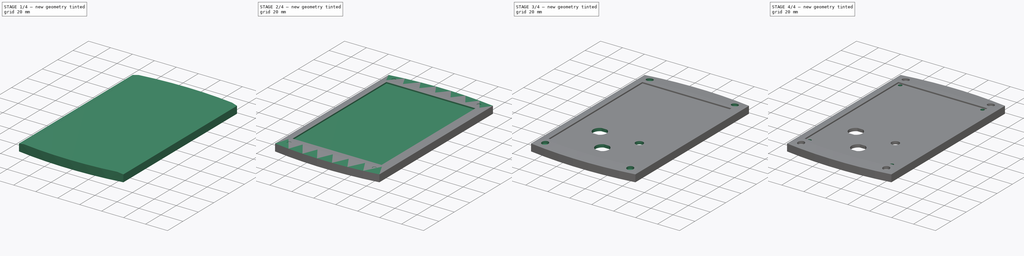
[diagram: build sequence overview — one tinted view per stage of 4, left to right]
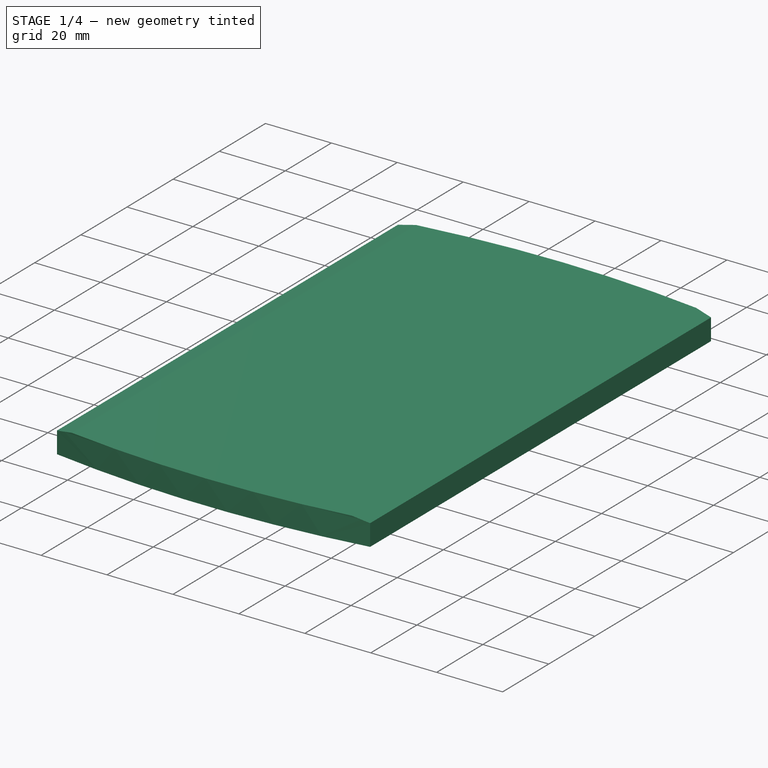
[diagram: stage 1 of 4 — iso view after this stage's code; geometry added in this stage tinted green]
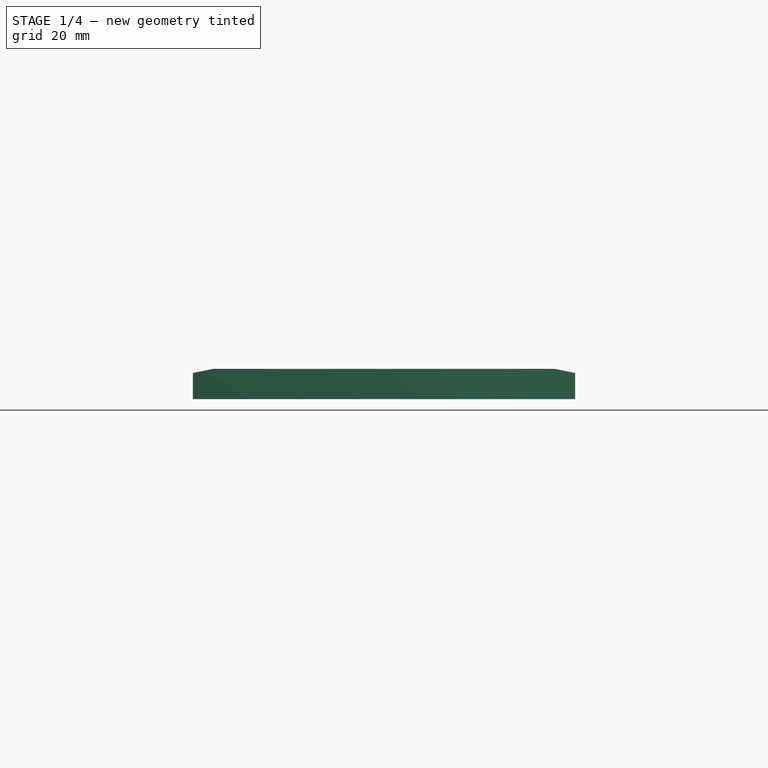
[diagram: stage 1 of 4 — front view after this stage's code; geometry added in this stage tinted green]
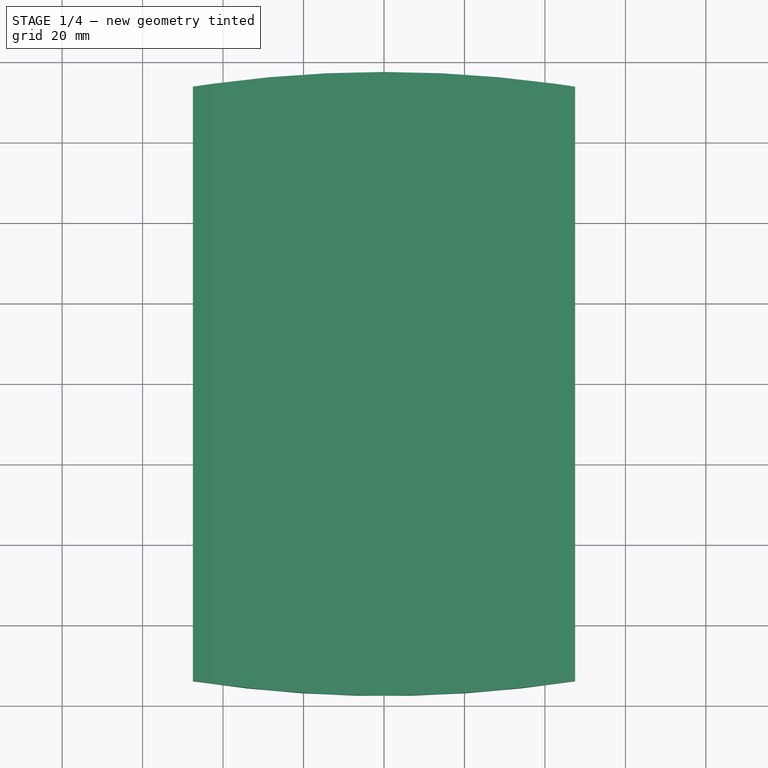
[diagram: stage 1 of 4 — top view after this stage's code; geometry added in this stage tinted green]
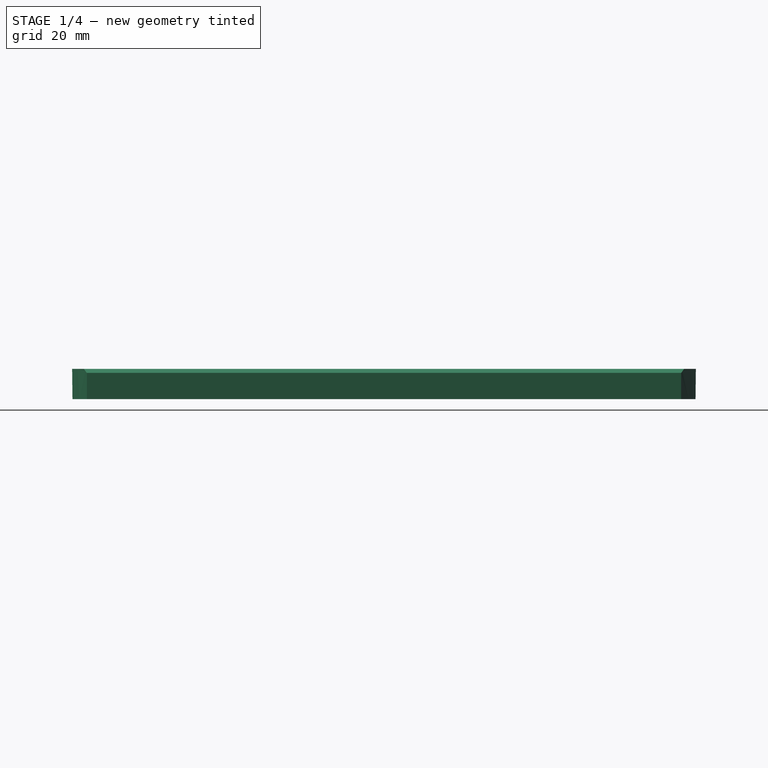
[diagram: stage 1 of 4 — right view after this stage's code; geometry added in this stage tinted green]
FCSTD DOCUMENT  (FreeCAD 1.0R39285 (Git))
Label: Lid_CSACTT004
License: All rights reserved
LicenseURL: https://en.wikipedia.org/wiki/All_rights_reserved
objects: Sketcher::SketchObject×8, PartDesign::Pocket×4, PartDesign::Hole×3, PartDesign::Chamfer×2, PartDesign::Pad×1, PartDesign::Body×1
note: 47 computed .brp shape members not serialized (recipe doc carries the construction recipe); baked Part::Feature solids carry a one-line shape summary decoded from their .brp

FEATURE [Sketcher::SketchObject] Sketch
  ArcFitTolerance = 1e-06
  AttachmentSupport = -> [XY_Plane]
  FullyConstrained = true
  MakeInternals = false
  MapMode = 5
  sketch-geometry (10):
    g0: LineSegment [constr] StartX=-47.5 StartY=-73.85 StartZ=0 EndX=47.5 EndY=-73.85 EndZ=0
    g1: LineSegment StartX=47.5 StartY=-73.85 StartZ=0 EndX=47.5 EndY=73.85 EndZ=0
    g2: LineSegment [constr] StartX=47.5 StartY=73.85 StartZ=0 EndX=-47.5 EndY=73.85 EndZ=0
    g3: LineSegment StartX=-47.5 StartY=73.85 StartZ=0 EndX=-47.5 EndY=-73.85 EndZ=0
    g4: LineSegment [constr] StartX=-47.5 StartY=73.85 StartZ=0 EndX=47.5 EndY=-73.85 EndZ=0
    g5: LineSegment [constr] StartX=-47.5 StartY=-73.85 StartZ=0 EndX=47.5 EndY=73.85 EndZ=0
    g6: ArcOfCircle CenterX=1.47e-14 CenterY=-233.4 CenterZ=0 NormalX=0 NormalY=0 NormalZ=1 AngleXU=0 Radius=310.9 StartAngle=1.41741 EndAngle=1.72418
    g7: ArcOfCircle CenterX=-1.735e-13 CenterY=233.4 CenterZ=0 NormalX=0 NormalY=0 NormalZ=1 AngleXU=0 Radius=310.9 StartAngle=4.55901 EndAngle=4.86577
    g8: GeomPoint X=0 Y=77.5 Z=0
    g9: GeomPoint X=0 Y=-77.5 Z=0
  constraints (26):
    c: Coincident(g0,g1)
    c: Coincident(g1,g2)
    c: Coincident(g2,g3)
    c: Coincident(g3,g0)
    c: Horizontal(g0)
    c: Horizontal(g2)
    c: Vertical(g1)
    c: Vertical(g3)
    c: Coincident(g4,g2)
    c: Coincident(g4,g0)
    c: Coincident(g5,g0)
    c: Coincident(g5,g1)
    c: PointOnObject(g-1,g4)
    c: PointOnObject(g-1,g5)
    c: Coincident(g6,g2)
    c: Coincident(g6,g1)
    c: Coincident(g7,g0)
    c: Coincident(g7,g0)
    c: Equal(g7,g6)
    c: PointOnObject(g8,g6)
    c: PointOnObject(g9,g7)
    c: PointOnObject(g9,g-2)
    c: PointOnObject(g8,g-2)
    c: DistanceY(g9,g8) = 155
    c: DistanceY(g1,g1) = 147.7
    c: Distance(g3,g1) = 95
FEATURE [PartDesign::Pad] Pad
  Direction = (0,0,1)
  Length = 7.5
  Length2 = 10
  Profile = -> Sketch
  ReferenceAxis = -> Sketch [N_Axis]
  Refine = true
  Suppressed = false
  Type = 0
FEATURE [PartDesign::Chamfer] Chamfer
  Angle = 45
  Base = -> Pad [Edge4,Edge10]
  BaseFeature = -> Pad
  ChamferType = 1
  FlipDirection = false
  Refine = true
  Size = 1
  Size2 = 5
  SupportTransform = false
  Suppressed = false
  UseAllEdges = false
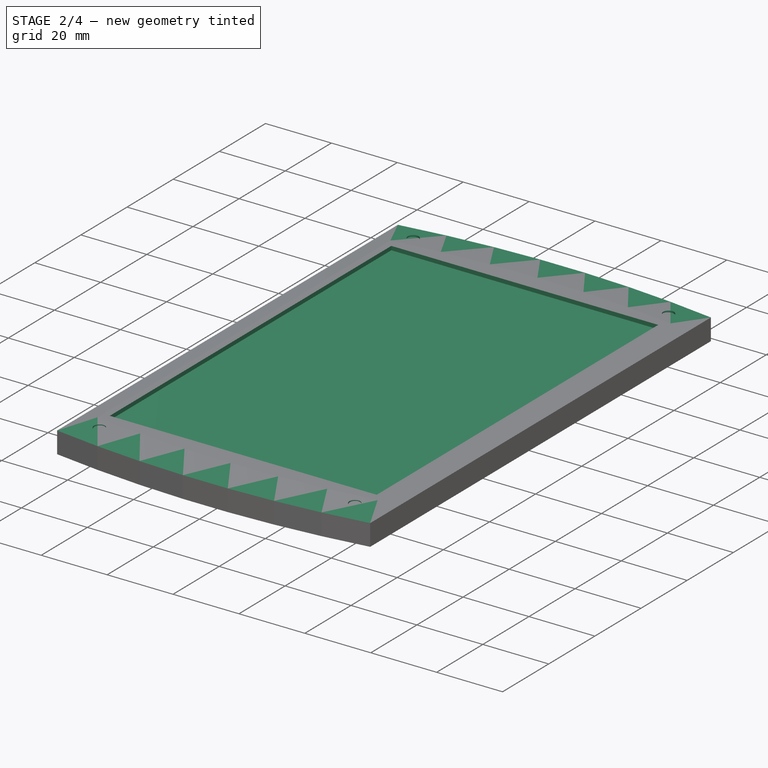
[diagram: stage 2 of 4 — iso view after this stage's code; geometry added in this stage tinted green]
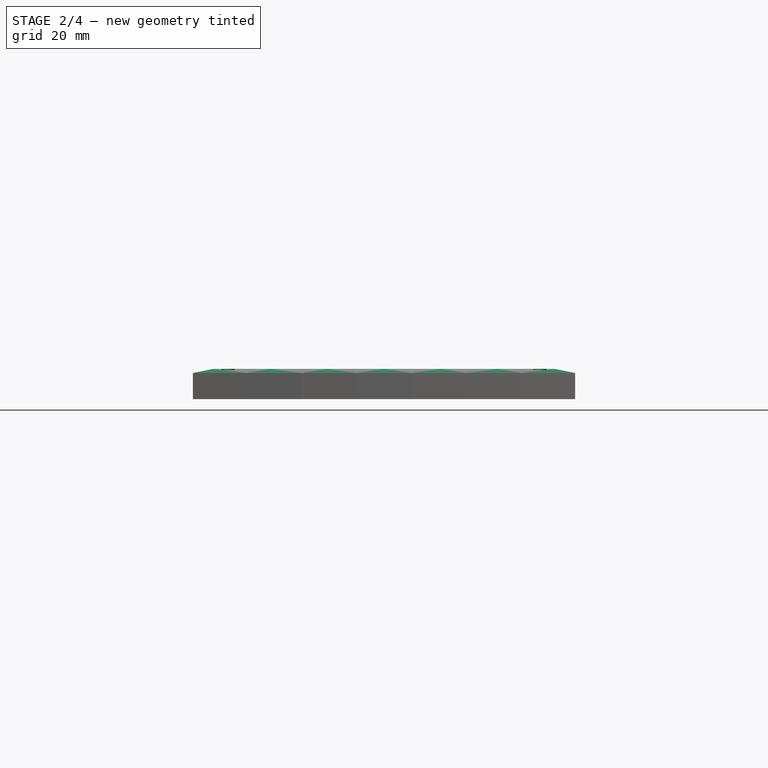
[diagram: stage 2 of 4 — front view after this stage's code; geometry added in this stage tinted green]
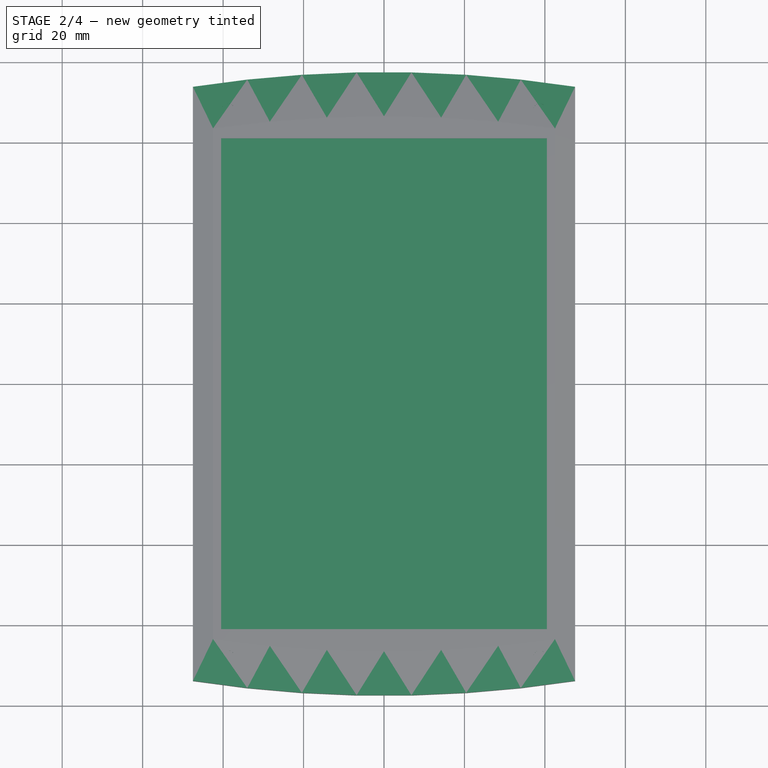
[diagram: stage 2 of 4 — top view after this stage's code; geometry added in this stage tinted green]
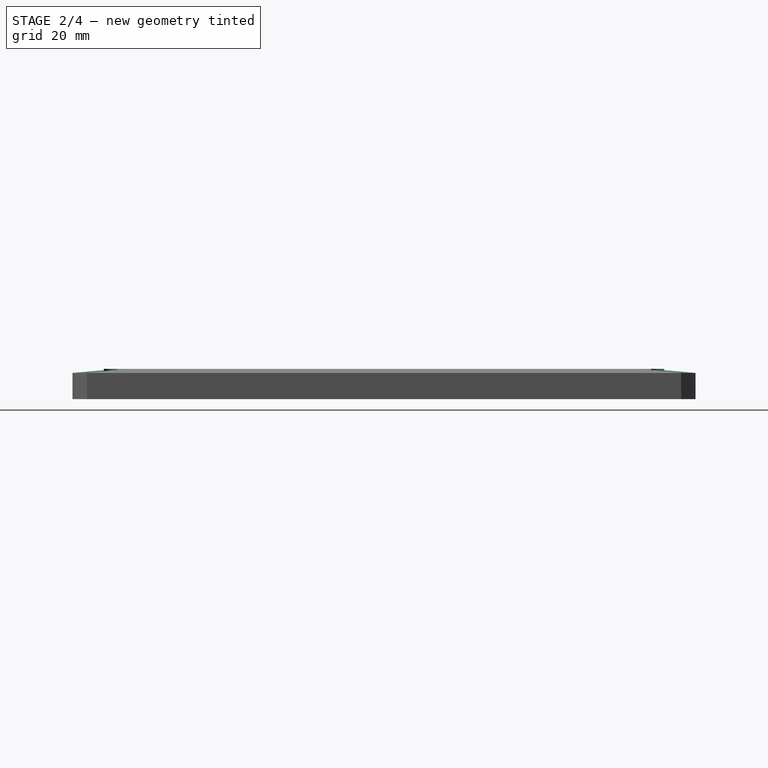
[diagram: stage 2 of 4 — right view after this stage's code; geometry added in this stage tinted green]
FEATURE [Sketcher::SketchObject] Sketch001
  ArcFitTolerance = 1e-06
  AttachmentOffset = pos=(0,0,7.5) rot=(0,0,1;0rad)
  AttachmentSupport = -> [XY_Plane]
  FullyConstrained = true
  MakeInternals = false
  MapMode = 5
  Placement = pos=(0,0,7.5) rot=(0,0,1;0rad)
  sketch-geometry (6):
    g0: LineSegment StartX=-40.5 StartY=61 StartZ=0 EndX=-40.5 EndY=-61 EndZ=0
    g1: LineSegment StartX=-40.5 StartY=-61 StartZ=0 EndX=40.5 EndY=-61 EndZ=0
    g2: LineSegment StartX=40.5 StartY=-61 StartZ=0 EndX=40.5 EndY=61 EndZ=0
    g3: LineSegment StartX=40.5 StartY=61 StartZ=0 EndX=-40.5 EndY=61 EndZ=0
    g4: LineSegment [constr] StartX=-40.5 StartY=61 StartZ=0 EndX=40.5 EndY=-61 EndZ=0
    g5: LineSegment [constr] StartX=-40.5 StartY=-61 StartZ=0 EndX=40.5 EndY=61 EndZ=0
  constraints (16):
    c: Coincident(g0,g1)
    c: Coincident(g1,g2)
    c: Coincident(g2,g3)
    c: Coincident(g3,g0)
    c: Vertical(g0)
    c: Vertical(g2)
    c: Horizontal(g1)
    c: Horizontal(g3)
    c: Coincident(g4,g0)
    c: Coincident(g4,g1)
    c: Coincident(g5,g0)
    c: Coincident(g5,g2)
    c: PointOnObject(g-1,g4)
    c: PointOnObject(g-1,g5)
    c: DistanceY(g2,g2) = 122
    c: DistanceX(g3,g3) = 81
FEATURE [PartDesign::Pocket] Pocket
  BaseFeature = -> Chamfer
  Direction = (0,0,-1)
  Length = 1.2
  Length2 = 5
  Profile = -> Sketch001
  ReferenceAxis = -> Sketch001 [N_Axis]
  Refine = true
  Suppressed = false
  Type = 0
FEATURE [Sketcher::SketchObject] Sketch002
  ArcFitTolerance = 1e-06
  AttachmentSupport = -> [XY_Plane]
  FullyConstrained = true
  MakeInternals = false
  MapMode = 5
  sketch-geometry (10):
    g0: LineSegment [constr] StartX=-38.75 StartY=68 StartZ=0 EndX=-38.75 EndY=-68 EndZ=0
    g1: LineSegment [constr] StartX=-38.75 StartY=-68 StartZ=0 EndX=38.75 EndY=-68 EndZ=0
    g2: LineSegment [constr] StartX=38.75 StartY=-68 StartZ=0 EndX=38.75 EndY=68 EndZ=0
    g3: LineSegment [constr] StartX=38.75 StartY=68 StartZ=0 EndX=-38.75 EndY=68 EndZ=0
    g4: LineSegment [constr] StartX=-38.75 StartY=68 StartZ=0 EndX=38.75 EndY=-68 EndZ=0
    g5: LineSegment [constr] StartX=-38.75 StartY=-68 StartZ=0 EndX=38.75 EndY=68 EndZ=0
    g6: Circle CenterX=-38.75 CenterY=-68 CenterZ=0 NormalX=0 NormalY=0 NormalZ=1 AngleXU=0 Radius=2.25
    g7: Circle CenterX=38.75 CenterY=-68 CenterZ=0 NormalX=0 NormalY=0 NormalZ=1 AngleXU=0 Radius=2.25
    g8: Circle CenterX=38.75 CenterY=68 CenterZ=0 NormalX=0 NormalY=0 NormalZ=1 AngleXU=0 Radius=2.25
    g9: Circle CenterX=-38.75 CenterY=68 CenterZ=0 NormalX=0 NormalY=0 NormalZ=1 AngleXU=0 Radius=2.25
  constraints (24):
    c: Coincident(g0,g1)
    c: Coincident(g1,g2)
    c: Coincident(g2,g3)
    c: Coincident(g3,g0)
    c: Vertical(g0)
    c: Vertical(g2)
    c: Horizontal(g1)
    c: Horizontal(g3)
    c: Coincident(g4,g0)
    c: Coincident(g4,g1)
    c: Coincident(g5,g2)
    c: Coincident(g5,g0)
    c: PointOnObject(g-1,g5)
    c: PointOnObject(g-1,g4)
    c: DistanceY(g2,g2) = 136
    c: DistanceX(g1,g1) = 77.5
    c: Coincident(g6,g0)
    c: Coincident(g7,g1)
    c: Coincident(g8,g2)
    c: Coincident(g9,g0)
    c: Equal(g9,g8)
    c: Equal(g8,g7)
    c: Equal(g7,g6)
    c: Diameter(g8) = 4.5
FEATURE [PartDesign::Hole] Hole
  BaseFeature = -> Pocket
  CustomThreadClearance = 0
  Depth = 25
  DepthType = 0
  Diameter = 3.3
  DrillForDepth = false
  DrillPoint = 1
  DrillPointAngle = 118
  HoleCutCountersinkAngle = 90
  HoleCutCustomValues = false
  HoleCutDepth = 0
  HoleCutDiameter = 6.1
  HoleCutType = 0
  ModelThread = false
  Profile = -> Sketch002
  Refine = true
  Reversed = true
  Suppressed = false
  Tapered = false
  TaperedAngle = 90
  ThreadClass = 0
  ThreadDepth = 25
  ThreadDepthType = 0
  ThreadDirection = 0
  ThreadFit = 0
  ThreadSize = 0
  ThreadType = 0
  Threaded = false
  UseCustomThreadClearance = false
FEATURE [PartDesign::Chamfer] Chamfer001
  Angle = 45
  Base = -> Hole [Edge8,Edge18]
  BaseFeature = -> Hole
  ChamferType = 1
  FlipDirection = false
  Refine = true
  Size = 1
  Size2 = 11
  SupportTransform = false
  Suppressed = false
  UseAllEdges = false
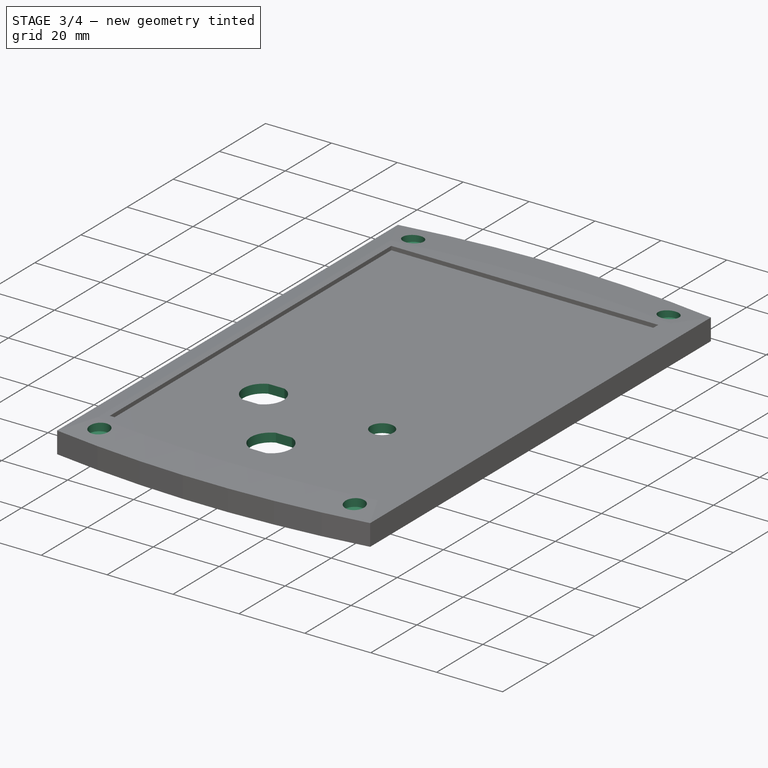
[diagram: stage 3 of 4 — iso view after this stage's code; geometry added in this stage tinted green]
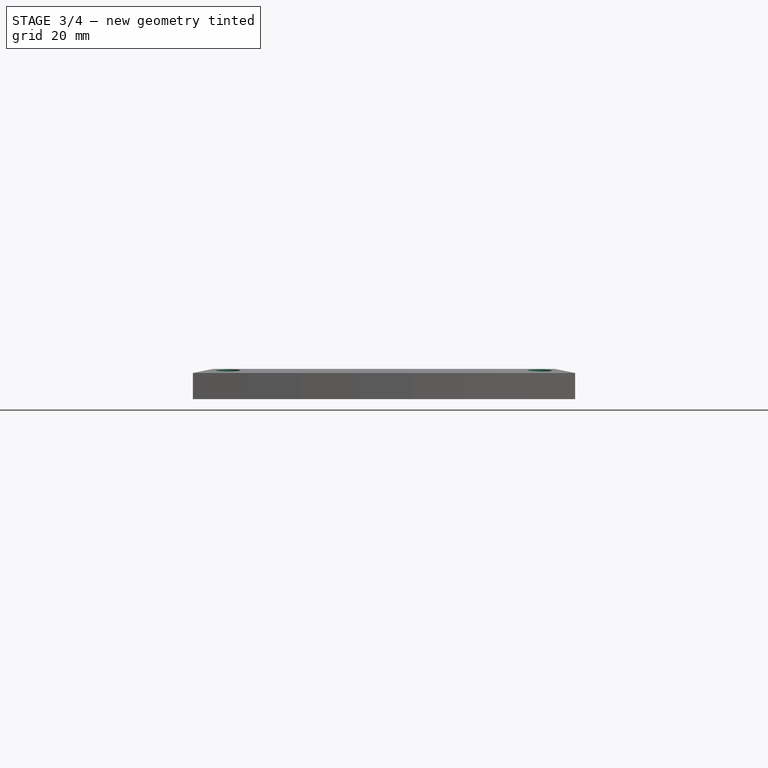
[diagram: stage 3 of 4 — front view after this stage's code; geometry added in this stage tinted green]
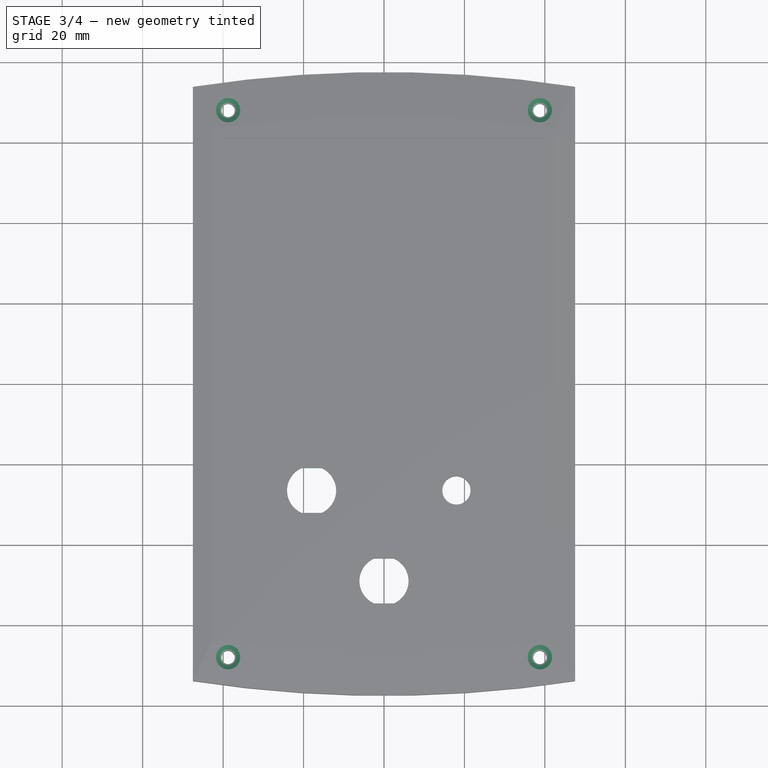
[diagram: stage 3 of 4 — top view after this stage's code; geometry added in this stage tinted green]
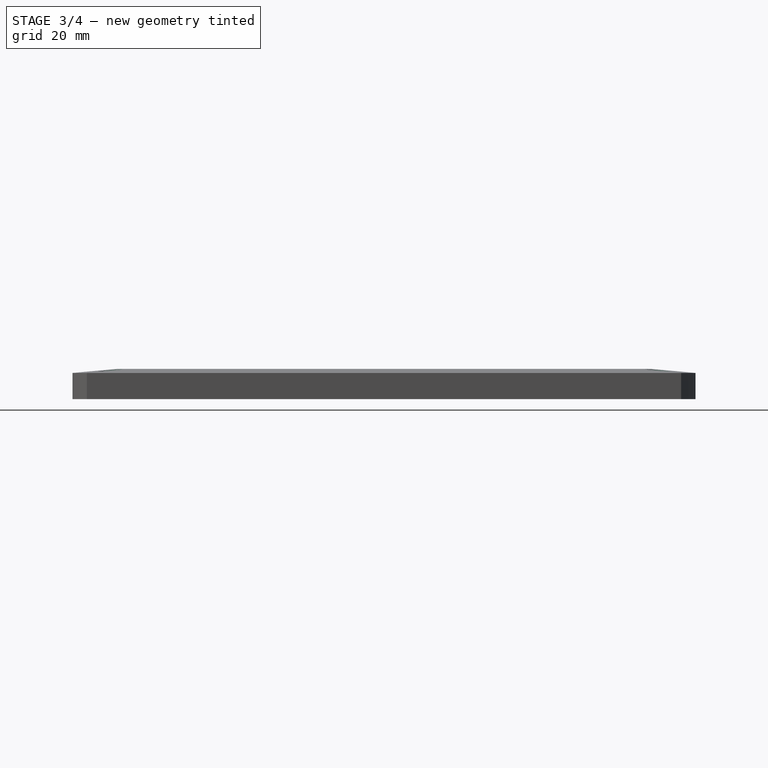
[diagram: stage 3 of 4 — right view after this stage's code; geometry added in this stage tinted green]
FEATURE [Sketcher::SketchObject] Sketch003
  ArcFitTolerance = 1e-06
  AttachmentOffset = pos=(0,0,7.5) rot=(0,0,1;0rad)
  AttachmentSupport = -> [XY_Plane]
  FullyConstrained = true
  MakeInternals = false
  MapMode = 5
  Placement = pos=(0,0,7.5) rot=(0,0,1;0rad)
  sketch-geometry (10):
    g0: LineSegment [constr] StartX=-38.75 StartY=68 StartZ=0 EndX=-38.75 EndY=-68 EndZ=0
    g1: LineSegment [constr] StartX=-38.75 StartY=-68 StartZ=0 EndX=38.75 EndY=-68 EndZ=0
    g2: LineSegment [constr] StartX=38.75 StartY=-68 StartZ=0 EndX=38.75 EndY=68 EndZ=0
    g3: LineSegment [constr] StartX=38.75 StartY=68 StartZ=0 EndX=-38.75 EndY=68 EndZ=0
    g4: LineSegment [constr] StartX=-38.75 StartY=68 StartZ=0 EndX=38.75 EndY=-68 EndZ=0
    g5: LineSegment [constr] StartX=-38.75 StartY=-68 StartZ=0 EndX=38.75 EndY=68 EndZ=0
    g6: Circle CenterX=-38.75 CenterY=-68 CenterZ=0 NormalX=0 NormalY=0 NormalZ=1 AngleXU=0 Radius=2.25
    g7: Circle CenterX=38.75 CenterY=-68 CenterZ=0 NormalX=0 NormalY=0 NormalZ=1 AngleXU=0 Radius=2.25
    g8: Circle CenterX=38.75 CenterY=68 CenterZ=0 NormalX=0 NormalY=0 NormalZ=1 AngleXU=0 Radius=2.25
    g9: Circle CenterX=-38.75 CenterY=68 CenterZ=0 NormalX=0 NormalY=0 NormalZ=1 AngleXU=0 Radius=2.25
  constraints (24):
    c: Coincident(g0,g1)
    c: Coincident(g1,g2)
    c: Coincident(g2,g3)
    c: Coincident(g3,g0)
    c: Vertical(g0)
    c: Vertical(g2)
    c: Horizontal(g1)
    c: Horizontal(g3)
    c: Coincident(g4,g0)
    c: Coincident(g4,g1)
    c: Coincident(g5,g2)
    c: Coincident(g5,g0)
    c: PointOnObject(g-1,g5)
    c: PointOnObject(g-1,g4)
    c: DistanceY(g2,g2) = 136
    c: DistanceX(g1,g1) = 77.5
    c: Coincident(g6,g0)
    c: Coincident(g7,g1)
    c: Coincident(g8,g2)
    c: Coincident(g9,g0)
    c: Equal(g9,g8)
    c: Equal(g8,g7)
    c: Equal(g7,g6)
    c: Diameter(g8) = 4.5
FEATURE [PartDesign::Hole] Hole001
  BaseFeature = -> Chamfer001
  CustomThreadClearance = 0
  Depth = 2.5
  DepthType = 0
  Diameter = 6
  DrillForDepth = false
  DrillPoint = 1
  DrillPointAngle = 118
  HoleCutCountersinkAngle = 90
  HoleCutCustomValues = false
  HoleCutDepth = 0
  HoleCutDiameter = 6.1
  HoleCutType = 0
  ModelThread = false
  Profile = -> Sketch003
  Refine = true
  Suppressed = false
  Tapered = true
  TaperedAngle = 90
  ThreadClass = 0
  ThreadDepth = 2.5
  ThreadDepthType = 0
  ThreadDirection = 0
  ThreadFit = 0
  ThreadSize = 0
  ThreadType = 0
  Threaded = false
  UseCustomThreadClearance = false
FEATURE [Sketcher::SketchObject] Sketch004
  ArcFitTolerance = 1e-06
  AttachmentSupport = -> [XY_Plane]
  FullyConstrained = true
  MakeInternals = false
  MapMode = 5
  sketch-geometry (12):
    g0: ArcOfCircle CenterX=-18 CenterY=-26.5 CenterZ=0 NormalX=0 NormalY=0 NormalZ=1 AngleXU=0 Radius=6.1 StartAngle=1.9785 EndAngle=4.30468
    g1: Circle CenterX=18 CenterY=-26.5 CenterZ=0 NormalX=0 NormalY=0 NormalZ=1 AngleXU=0 Radius=3.5
    g2: ArcOfCircle CenterX=0 CenterY=-49 CenterZ=0 NormalX=0 NormalY=0 NormalZ=1 AngleXU=0 Radius=6.1 StartAngle=1.9785 EndAngle=4.30468
    g3: LineSegment StartX=-20.4187 StartY=-20.9 StartZ=0 EndX=-15.5813 EndY=-20.9 EndZ=0
    g4: LineSegment StartX=-15.5813 StartY=-32.1 StartZ=0 EndX=-20.4187 EndY=-32.1 EndZ=0
    g5: LineSegment StartX=-2.41868 StartY=-43.4 StartZ=0 EndX=2.41868 EndY=-43.4 EndZ=0
    g6: LineSegment StartX=-2.41868 StartY=-54.6 StartZ=0 EndX=2.41868 EndY=-54.6 EndZ=0
    g7: LineSegment [constr] StartX=-18 StartY=-20.9 StartZ=0 EndX=-18 EndY=-32.1 EndZ=0
    g8: LineSegment [constr] StartX=0 StartY=-43.4 StartZ=0 EndX=0 EndY=-54.6 EndZ=0
    g9: ArcOfCircle CenterX=-18 CenterY=-26.5 CenterZ=0 NormalX=0 NormalY=0 NormalZ=1 AngleXU=0 Radius=6.1 StartAngle=5.1201 EndAngle=7.44628
    g10: ArcOfCircle CenterX=0 CenterY=-49 CenterZ=0 NormalX=0 NormalY=0 NormalZ=1 AngleXU=0 Radius=6.1 StartAngle=5.1201 EndAngle=7.44628
    g11: GeomPoint [constr] X=0 Y=-26.5 Z=0
  constraints (35):
    c: PointOnObject(g2,g-2)
    c: Horizontal(g3)
    c: Horizontal(g5)
    c: PointOnObject(g6,g10)
    c: Horizontal(g6)
    c: Symmetric(g3,g3,g7)
    c: Symmetric(g4,g4,g7)
    c: PointOnObject(g8,g5)
    c: PointOnObject(g8,g6)
    c: Vertical(g8)
    c: Symmetric(g7,g7,g0)
    c: Symmetric(g8,g8,g2)
    c: Equal(g3,g5)
    c: Equal(g0,g2)
    c: Diameter(g0) = 12.2
    c: Distance(g4,g3) = 11.2
    c: Coincident(g9,g3)
    c: Coincident(g0,g3)
    c: Equal(g0,g9)
    c: Coincident(g0,g4)
    c: Coincident(g0,g9)
    c: Coincident(g10,g5)
    c: Coincident(g2,g5)
    c: Equal(g2,g10)
    c: Coincident(g2,g10)
    c: Diameter(g1) = 7
    c: DistanceX(g0,g1) = 36
    c: PointOnObject(g11,g-2)
    c: Symmetric(g0,g1,g11)
    c: Horizontal(g0,g1)
    c: DistanceY(g1,g-1) = 26.5
    c: DistanceY(g2,g1) = 22.5
    c: Coincident(g9,g4)
    c: PointOnObject(g2,g6)
    c: Coincident(g6,g10)
FEATURE [PartDesign::Pocket] Pocket001
  BaseFeature = -> Hole001
  Direction = (0,0,-1)
  Length = 10
  Length2 = 5
  Profile = -> Sketch004
  ReferenceAxis = -> Sketch004 [N_Axis]
  Refine = true
  Reversed = true
  Suppressed = false
  Type = 0
FEATURE [Sketcher::SketchObject] Sketch005
  ArcFitTolerance = 1e-06
  AttachmentSupport = -> [XY_Plane]
  FullyConstrained = true
  MakeInternals = false
  MapMode = 5
  sketch-geometry (6):
    g0: LineSegment StartX=-44.25 StartY=63 StartZ=0 EndX=-44.25 EndY=-63 EndZ=0
    g1: LineSegment StartX=-44.25 StartY=-63 StartZ=0 EndX=44.25 EndY=-63 EndZ=0
    g2: LineSegment StartX=44.25 StartY=-63 StartZ=0 EndX=44.25 EndY=63 EndZ=0
    g3: LineSegment StartX=44.25 StartY=63 StartZ=0 EndX=-44.25 EndY=63 EndZ=0
    g4: LineSegment [constr] StartX=-44.25 StartY=63 StartZ=0 EndX=44.25 EndY=-63 EndZ=0
    g5: LineSegment [constr] StartX=44.25 StartY=63 StartZ=0 EndX=-44.25 EndY=-63 EndZ=0
  constraints (16):
    c: Coincident(g0,g1)
    c: Coincident(g1,g2)
    c: Coincident(g2,g3)
    c: Coincident(g3,g0)
    c: Vertical(g0)
    c: Vertical(g2)
    c: Horizontal(g1)
    c: Horizontal(g3)
    c: Coincident(g4,g0)
    c: Coincident(g4,g1)
    c: Coincident(g5,g2)
    c: Coincident(g5,g0)
    c: PointOnObject(g-1,g4)
    c: PointOnObject(g-1,g5)
    c: DistanceX(g3,g3) = 88.5
    c: DistanceY(g2,g2) = 126
FEATURE [PartDesign::Pocket] Pocket002
  BaseFeature = -> Pocket001
  Direction = (0,0,-1)
  Length = 3.6
  Length2 = 5
  Profile = -> Sketch005
  ReferenceAxis = -> Sketch005 [N_Axis]
  Refine = true
  Reversed = true
  Suppressed = false
  Type = 0
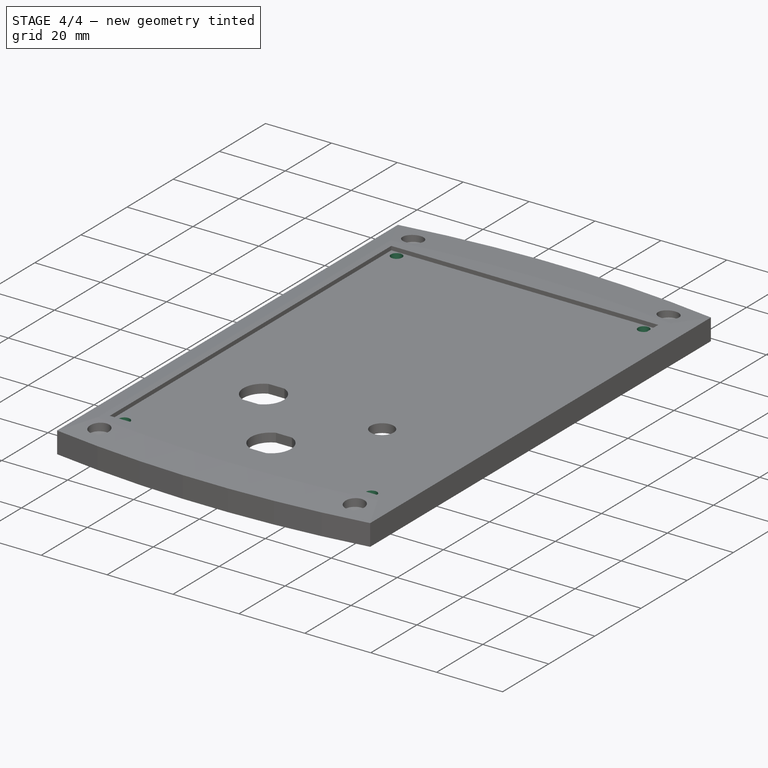
[diagram: stage 4 of 4 — iso view after this stage's code; geometry added in this stage tinted green]
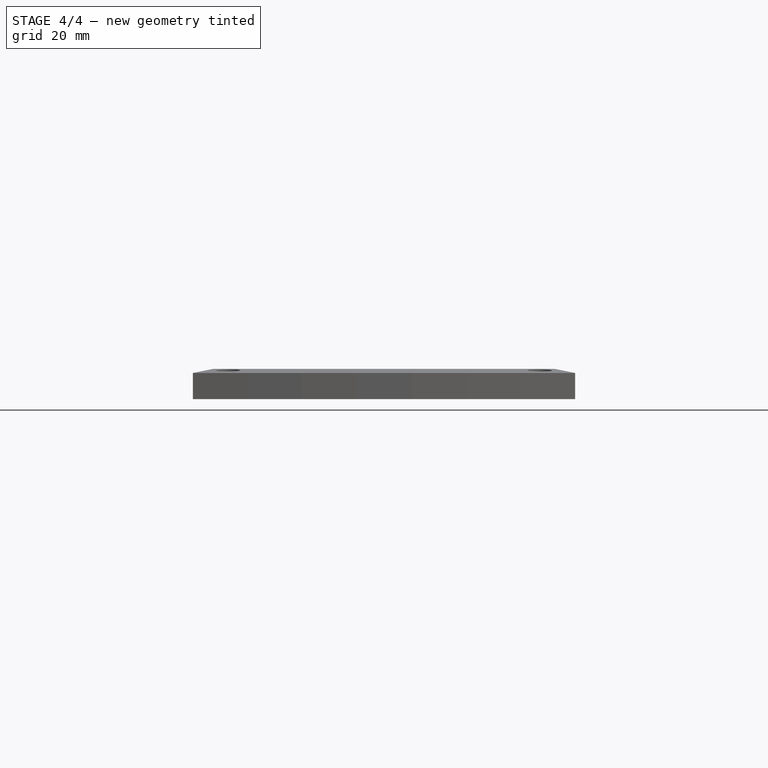
[diagram: stage 4 of 4 — front view after this stage's code; geometry added in this stage tinted green]
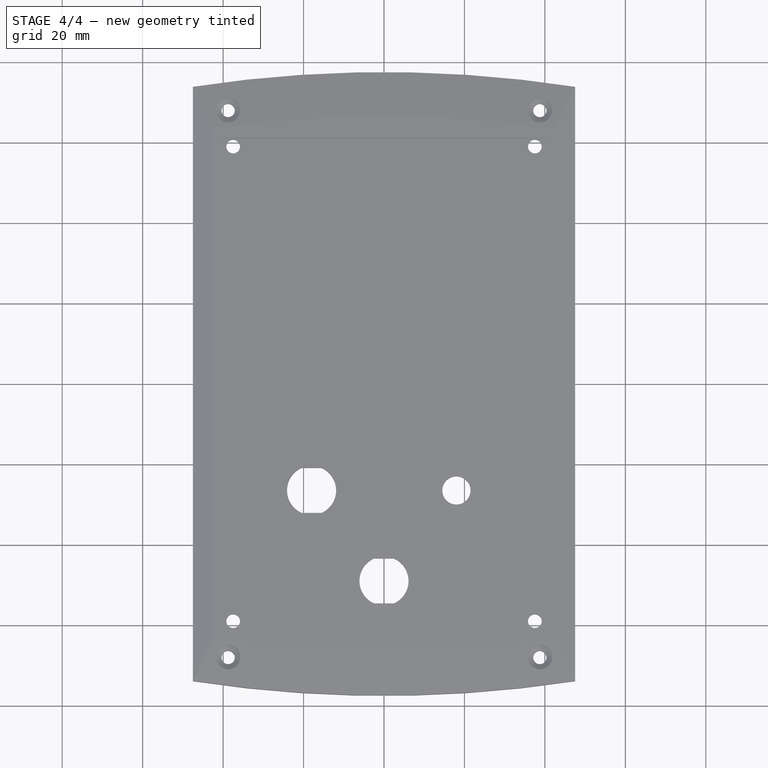
[diagram: stage 4 of 4 — top view after this stage's code; geometry added in this stage tinted green]
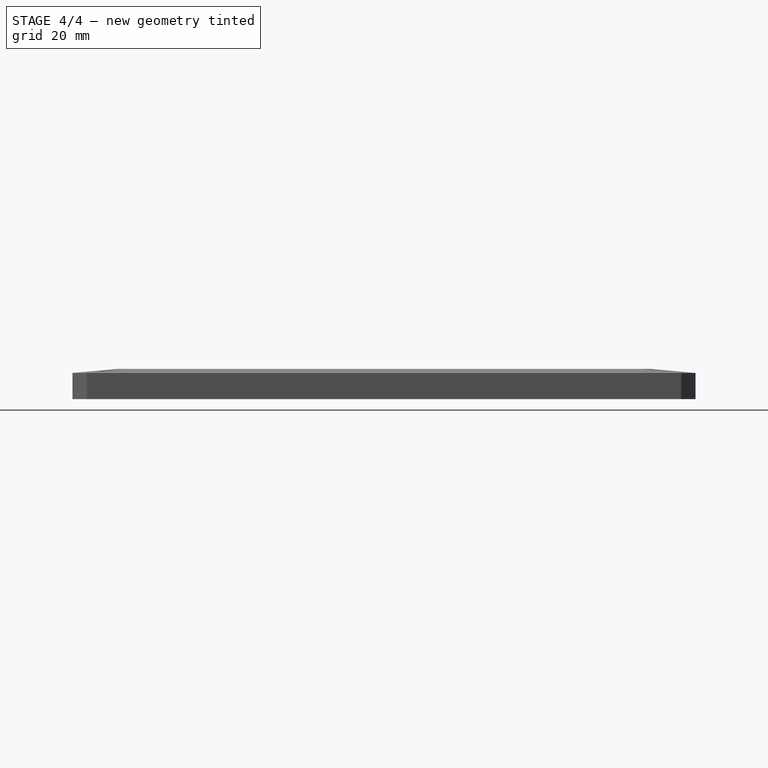
[diagram: stage 4 of 4 — right view after this stage's code; geometry added in this stage tinted green]
FEATURE [Sketcher::SketchObject] Sketch006
  ArcFitTolerance = 1e-06
  AttachmentOffset = pos=(0,0,3.6) rot=(0,0,1;0rad)
  AttachmentSupport = -> [XY_Plane]
  ExternalGeometry = -> [Pocket002]
  FullyConstrained = true
  MakeInternals = false
  MapMode = 5
  Placement = pos=(0,0,3.6) rot=(0,0,1;0rad)
  sketch-geometry (6):
    g0: ArcOfCircle CenterX=17 CenterY=-32.5 CenterZ=0 NormalX=0 NormalY=0 NormalZ=1 AngleXU=0 Radius=0.5 StartAngle=1.5708 EndAngle=4.71239
    g1: ArcOfCircle CenterX=19 CenterY=-32.5 CenterZ=0 NormalX=0 NormalY=0 NormalZ=1 AngleXU=0 Radius=0.5 StartAngle=4.71239 EndAngle=7.85398
    g2: LineSegment StartX=17 StartY=-32 StartZ=0 EndX=19 EndY=-32 EndZ=0
    g3: LineSegment StartX=17 StartY=-33 StartZ=0 EndX=19 EndY=-33 EndZ=0
    g4: LineSegment [constr] StartX=17 StartY=-32.5 StartZ=0 EndX=19 EndY=-32.5 EndZ=0
    g5: GeomPoint [constr] X=18 Y=-32.5 Z=0
  constraints (13):
    c: Tangent(g0,g2) = 1.5708
    c: Tangent(g0,g3) = -1.5708
    c: Tangent(g1,g2) = 1.5708
    c: Tangent(g1,g3) = -1.5708
    c: Equal(g0,g1)
    c: Horizontal(g3)
    c: DistanceX(g0,g1) = 2
    c: Radius(g1) = 0.5
    c: Coincident(g4,g0)
    c: Coincident(g4,g1)
    c: Distance(g-3,g4) = 6
    c: Vertical(g5,g-3)
    c: Symmetric(g1,g0,g5)
FEATURE [PartDesign::Pocket] Pocket003
  BaseFeature = -> Pocket002
  Direction = (0,0,-1)
  Length = 1
  Length2 = 5
  Profile = -> Sketch006
  ReferenceAxis = -> Sketch006 [N_Axis]
  Refine = true
  Reversed = true
  Suppressed = false
  Type = 0
FEATURE [Sketcher::SketchObject] Sketch007
  ArcFitTolerance = 1e-06
  AttachmentSupport = -> [XY_Plane]
  FullyConstrained = true
  MakeInternals = false
  MapMode = 5
  sketch-geometry (10):
    g0: LineSegment [constr] StartX=-37.5 StartY=59 StartZ=0 EndX=-37.5 EndY=-59 EndZ=0
    g1: LineSegment [constr] StartX=-37.5 StartY=-59 StartZ=0 EndX=37.5 EndY=-59 EndZ=0
    g2: LineSegment [constr] StartX=37.5 StartY=-59 StartZ=0 EndX=37.5 EndY=59 EndZ=0
    g3: LineSegment [constr] StartX=37.5 StartY=59 StartZ=0 EndX=-37.5 EndY=59 EndZ=0
    g4: LineSegment [constr] StartX=-37.5 StartY=59 StartZ=0 EndX=37.5 EndY=-59 EndZ=0
    g5: LineSegment [constr] StartX=37.5 StartY=59 StartZ=0 EndX=-37.5 EndY=-59 EndZ=0
    g6: Circle CenterX=-37.5 CenterY=59 CenterZ=0 NormalX=0 NormalY=0 NormalZ=1 AngleXU=0 Radius=1.7
    g7: Circle CenterX=37.5 CenterY=59 CenterZ=0 NormalX=0 NormalY=0 NormalZ=1 AngleXU=0 Radius=1.7
    g8: Circle CenterX=37.5 CenterY=-59 CenterZ=0 NormalX=0 NormalY=0 NormalZ=1 AngleXU=0 Radius=1.7
    g9: Circle CenterX=-37.5 CenterY=-59 CenterZ=0 NormalX=0 NormalY=0 NormalZ=1 AngleXU=0 Radius=1.7
  constraints (24):
    c: Coincident(g0,g1)
    c: Coincident(g1,g2)
    c: Coincident(g2,g3)
    c: Coincident(g3,g0)
    c: Vertical(g0)
    c: Vertical(g2)
    c: Horizontal(g1)
    c: Horizontal(g3)
    c: Coincident(g4,g0)
    c: Coincident(g4,g1)
    c: Coincident(g5,g2)
    c: Coincident(g5,g0)
    c: PointOnObject(g-1,g4)
    c: PointOnObject(g-1,g5)
    c: DistanceX(g3,g3) = 75
    c: DistanceY(g2,g2) = 118
    c: Coincident(g6,g0)
    c: Coincident(g7,g2)
    c: Coincident(g8,g1)
    c: Coincident(g9,g0)
    c: Equal(g6,g7)
    c: Equal(g7,g8)
    c: Equal(g8,g9)
    c: Diameter(g6) = 3.4
FEATURE [PartDesign::Hole] Hole002
  BaseFeature = -> Pocket003
  CustomThreadClearance = 0
  Depth = 25
  DepthType = 0
  Diameter = 3.4
  DrillForDepth = false
  DrillPoint = 1
  DrillPointAngle = 118
  HoleCutCountersinkAngle = 90
  HoleCutCustomValues = false
  HoleCutDepth = 0
  HoleCutDiameter = 6.1
  HoleCutType = 0
  ModelThread = false
  Profile = -> Sketch007
  Refine = true
  Reversed = true
  Suppressed = false
  Tapered = false
  TaperedAngle = 90
  ThreadClass = 0
  ThreadDepth = 25
  ThreadDepthType = 0
  ThreadDirection = 0
  ThreadFit = 0
  ThreadSize = 0
  ThreadType = 0
  Threaded = false
  UseCustomThreadClearance = false
FEATURE [PartDesign::Body] Body  label="Körper"
  AllowCompound = false
  Group = -> [Sketch,Pad,Chamfer,Sketch001,Pocket,Sketch002,Hole,Chamfer001,Sketch003,Hole001,Sketch004,Pocket001,Sketch005,Pocket002,Sketch006,Pocket003,Sketch007,Hole002]
  Origin = -> Origin
  Tip = -> Hole002
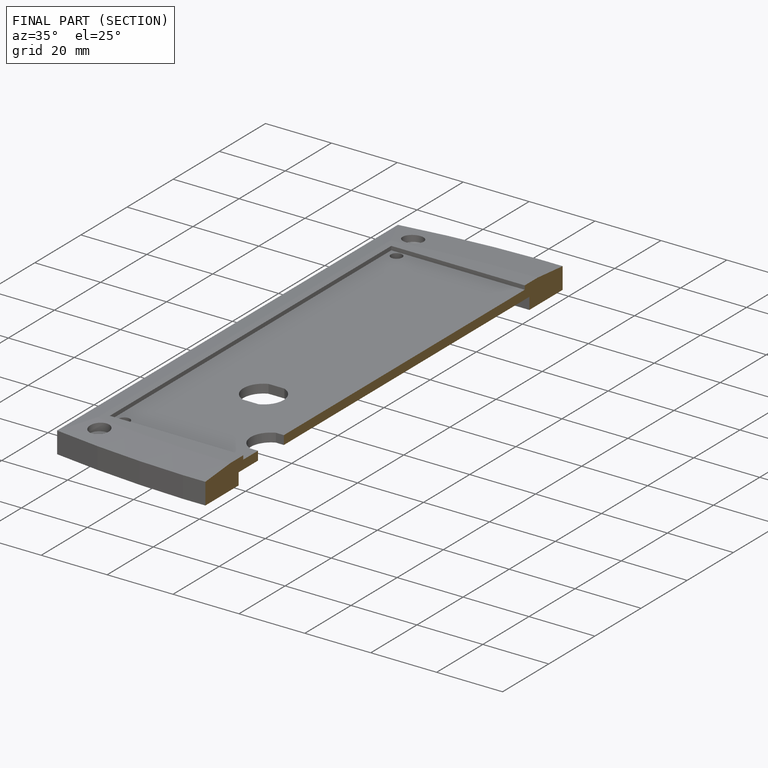
[diagram: finished part — half-section view (interior)]
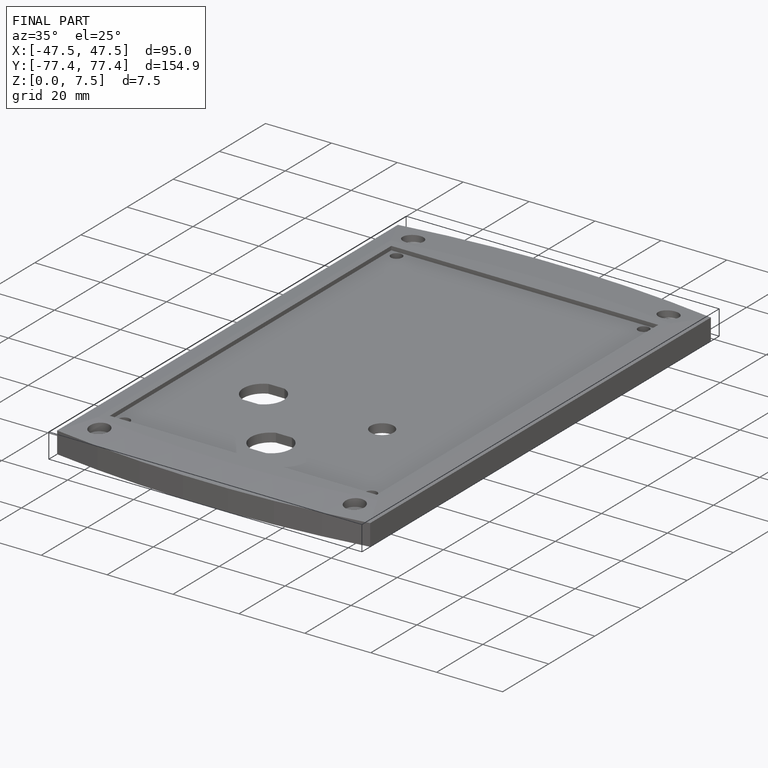
[diagram: finished part — iso view with bounding-box wireframe]
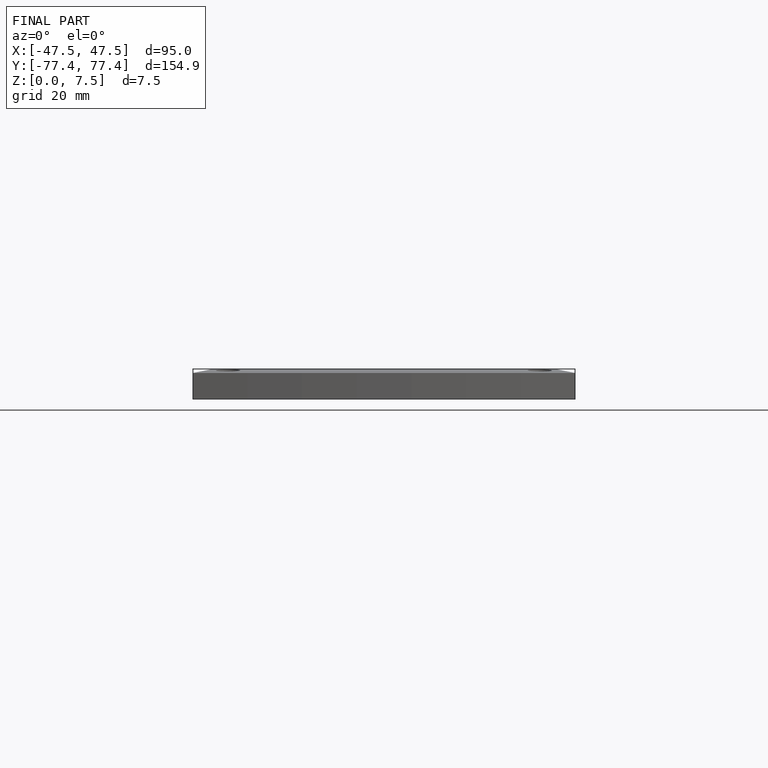
[diagram: finished part — front view with bounding-box wireframe]
